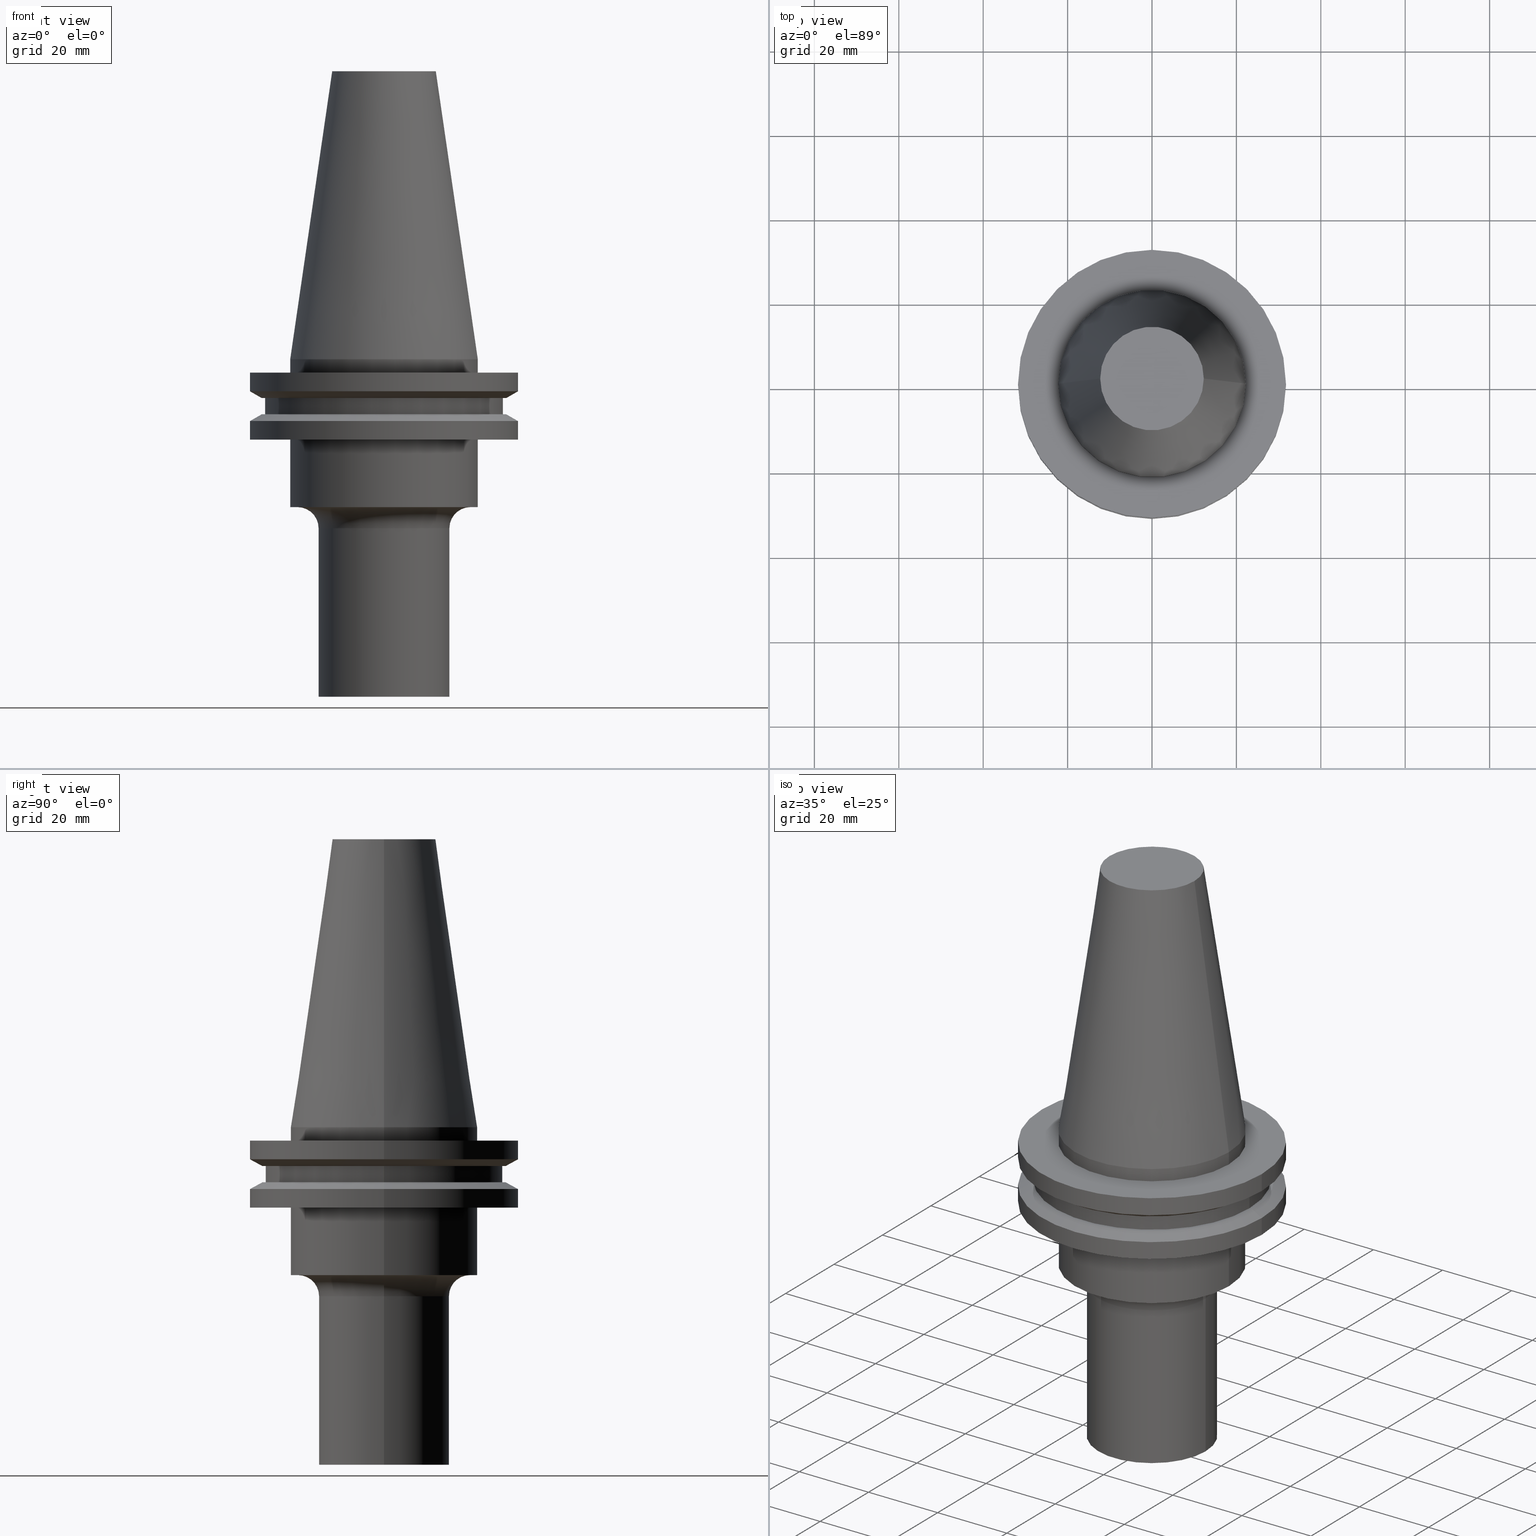
[diagram: canonical four-view strip — front | top / right | iso, engineering-drawing reading convention]
A machine part, canonical four-view strip (front | top / right | iso — engineering-drawing reading convention). The complete STEP part file that produces these views, byte-faithful:
ISO-10303-21;
HEADER;
FILE_DESCRIPTION (( 'STEP AP203' ),
    '1' );
FILE_NAME ('11_326_431.stp',
    '2022-03-07T22:03:45',
    ( '' ),
    ( '' ),
    'SwSTEP 2.0',
    'SolidWorks 2021',
    '' );
FILE_SCHEMA (( 'CONFIG_CONTROL_DESIGN' ));
ENDSEC;

DATA;
#1 = ADVANCED_FACE ( 'NONE', ( #3 ), #658, .T. ) ;
#2 = DIRECTION ( 'NONE',  ( 1.000000000000000000, 0.000000000000000000, 0.000000000000000000 ) ) ;
#3 = FACE_OUTER_BOUND ( 'NONE', #695, .T. ) ;
#4 = CIRCLE ( 'NONE', #140, 20.50000000000000000 ) ;
#5 = AXIS2_PLACEMENT_3D ( 'NONE', #494, #201, #6 ) ;
#6 = DIRECTION ( 'NONE',  ( 1.000000000000000000, 0.000000000000000000, 0.000000000000000000 ) ) ;
#7 = DIRECTION ( 'NONE',  ( 1.224646799147353207E-16, 1.000000000000000000, 0.000000000000000000 ) ) ;
#8 = CIRCLE ( 'NONE', #79, 22.22500000000000142 ) ;
#9 = DIRECTION ( 'NONE',  ( -0.000000000000000000, -0.000000000000000000, 1.000000000000000000 ) ) ;
#10 = LINE ( 'NONE', #726, #129 ) ;
#11 = DATE_AND_TIME ( #776, #640 ) ;
#12 = CARTESIAN_POINT ( 'NONE',  ( 22.22500000000000142, 0.000000000000000000, -35.04999999999999716 ) ) ;
#13 = CARTESIAN_POINT ( 'NONE',  ( 0.000000000000000000, 0.000000000000000000, -35.04999999999999716 ) ) ;
#14 = EDGE_CURVE ( 'NONE', #651, #525, #542, .T. ) ;
#15 = CARTESIAN_POINT ( 'NONE',  ( 0.000000000000000000, 0.000000000000000000, -40.04999999999999005 ) ) ;
#16 = VECTOR ( 'NONE', #442, 1000.000000000000000 ) ;
#17 = CC_DESIGN_PERSON_AND_ORGANIZATION_ASSIGNMENT ( #118, #481, ( #713 ) ) ;
#18 = CARTESIAN_POINT ( 'NONE',  ( 0.000000000000000000, 0.000000000000000000, 0.000000000000000000 ) ) ;
#19 = AXIS2_PLACEMENT_3D ( 'NONE', #511, #745, #210 ) ;
#20 = DATE_TIME_ROLE ( 'classification_date' ) ;
#21 = VECTOR ( 'NONE', #135, 1000.000000000000000 ) ;
#22 = DIRECTION ( 'NONE',  ( 0.000000000000000000, 0.000000000000000000, -1.000000000000000000 ) ) ;
#23 = EDGE_CURVE ( 'NONE', #39, #58, #598, .T. ) ;
#24 = CARTESIAN_POINT ( 'NONE',  ( 28.17999999999999972, 0.000000000000000000, 68.25000000000000000 ) ) ;
#25 = CARTESIAN_POINT ( 'NONE',  ( 22.22500000000000142, 0.000000000000000000, -19.04999999999999716 ) ) ;
#26 = EDGE_CURVE ( 'NONE', #356, #722, #239, .T. ) ;
#27 = VECTOR ( 'NONE', #87, 1000.000000000000000 ) ;
#28 = DIRECTION ( 'NONE',  ( -0.000000000000000000, -0.000000000000000000, 1.000000000000000000 ) ) ;
#29 = CARTESIAN_POINT ( 'NONE',  ( -31.75000000000000000, 0.000000000000000000, -14.65472339340266572 ) ) ;
#30 = FACE_OUTER_BOUND ( 'NONE', #230, .T. ) ;
#31 = VECTOR ( 'NONE', #150, 1000.000000000000000 ) ;
#32 = ORIENTED_EDGE ( 'NONE', *, *, #109, .F. ) ;
#33 = FACE_OUTER_BOUND ( 'NONE', #37, .T. ) ;
#34 = CARTESIAN_POINT ( 'NONE',  ( 0.000000000000000000, 0.000000000000000000, -40.04999999999999005 ) ) ;
#35 = ORIENTED_EDGE ( 'NONE', *, *, #292, .F. ) ;
#36 = CARTESIAN_POINT ( 'NONE',  ( -22.22500000000000142, 2.721777511104992849E-15, -35.04999999999999716 ) ) ;
#37 = EDGE_LOOP ( 'NONE', ( #52, #624, #656, #753 ) ) ;
#38 = DIRECTION ( 'NONE',  ( 0.000000000000000000, -0.000000000000000000, 1.000000000000000000 ) ) ;
#39 = VERTEX_POINT ( 'NONE', #715 ) ;
#40 = ORIENTED_EDGE ( 'NONE', *, *, #71, .F. ) ;
#41 = AXIS2_PLACEMENT_3D ( 'NONE', #395, #562, #22 ) ;
#42 = EDGE_CURVE ( 'NONE', #525, #638, #344, .T. ) ;
#43 = DIRECTION ( 'NONE',  ( 1.000000000000000000, 0.000000000000000000, 0.000000000000000000 ) ) ;
#44 = EDGE_LOOP ( 'NONE', ( #89, #455, #572, #402 ) ) ;
#45 = VERTEX_POINT ( 'NONE', #777 ) ;
#46 = DIRECTION ( 'NONE',  ( 1.000000000000000000, 0.000000000000000000, 0.000000000000000000 ) ) ;
#47 = ORIENTED_EDGE ( 'NONE', *, *, #251, .T. ) ;
#48 = ORIENTED_EDGE ( 'NONE', *, *, #322, .T. ) ;
#49 = EDGE_CURVE ( 'NONE', #166, #356, #543, .T. ) ;
#50 = DIRECTION ( 'NONE',  ( -0.000000000000000000, -0.000000000000000000, 1.000000000000000000 ) ) ;
#51 = VECTOR ( 'NONE', #554, 1000.000000000000000 ) ;
#52 = ORIENTED_EDGE ( 'NONE', *, *, #23, .F. ) ;
#53 = ORIENTED_EDGE ( 'NONE', *, *, #104, .F. ) ;
#54 = DIRECTION ( 'NONE',  ( -0.000000000000000000, -0.000000000000000000, 1.000000000000000000 ) ) ;
#55 =( NAMED_UNIT ( * ) SI_UNIT ( $, .STERADIAN. ) SOLID_ANGLE_UNIT ( ) );
#56 = ORIENTED_EDGE ( 'NONE', *, *, #738, .T. ) ;
#57 = AXIS2_PLACEMENT_3D ( 'NONE', #428, #65, #530 ) ;
#58 = VERTEX_POINT ( 'NONE', #483 ) ;
#59 = CARTESIAN_POINT ( 'NONE',  ( -20.50000000000000000, 2.510525938252074481E-15, -40.04999999999999716 ) ) ;
#60 = DIRECTION ( 'NONE',  ( -0.000000000000000000, -0.000000000000000000, 1.000000000000000000 ) ) ;
#61 = ADVANCED_FACE ( 'NONE', ( #717 ), #682, .F. ) ;
#62 = DIRECTION ( 'NONE',  ( -0.000000000000000000, -0.000000000000000000, 1.000000000000000000 ) ) ;
#63 = PERSON_AND_ORGANIZATION_ROLE ( 'design_supplier' ) ;
#64 = CIRCLE ( 'NONE', #269, 5.000000000000000888 ) ;
#65 = DIRECTION ( 'NONE',  ( -0.000000000000000000, -0.000000000000000000, 1.000000000000000000 ) ) ;
#66 = AXIS2_PLACEMENT_3D ( 'NONE', #225, #466, #475 ) ;
#67 = CARTESIAN_POINT ( 'NONE',  ( 22.22500000000000142, 0.000000000000000000, 68.25000000000000000 ) ) ;
#68 = DIRECTION ( 'NONE',  ( -0.000000000000000000, -0.000000000000000000, 1.000000000000000000 ) ) ;
#69 = DIRECTION ( 'NONE',  ( -1.000000000000000000, 0.000000000000000000, 0.000000000000000000 ) ) ;
#70 = CARTESIAN_POINT ( 'NONE',  ( 0.000000000000000000, 0.000000000000000000, -35.04999999999999716 ) ) ;
#71 = EDGE_CURVE ( 'NONE', #403, #410, #8, .T. ) ;
#72 = DIRECTION ( 'NONE',  ( -0.000000000000000000, -0.000000000000000000, 1.000000000000000000 ) ) ;
#73 = EDGE_CURVE ( 'NONE', #722, #346, #397, .T. ) ;
#74 = DIRECTION ( 'NONE',  ( -0.000000000000000000, -0.000000000000000000, 1.000000000000000000 ) ) ;
#75 = DIRECTION ( 'NONE',  ( 1.000000000000000000, 0.000000000000000000, 0.000000000000000000 ) ) ;
#76 = CC_DESIGN_APPROVAL ( #409, ( #333 ) ) ;
#77 = CONICAL_SURFACE ( 'NONE', #184, 28.97919780457007732, 1.047197551196598297 ) ;
#78 = DIRECTION ( 'NONE',  ( 1.000000000000000000, 0.000000000000000000, 0.000000000000000000 ) ) ;
#79 = AXIS2_PLACEMENT_3D ( 'NONE', #297, #424, #766 ) ;
#80 = CARTESIAN_POINT ( 'NONE',  ( 22.22500000000000142, 2.721777511104992849E-15, 0.000000000000000000 ) ) ;
#81 = EDGE_CURVE ( 'NONE', #119, #531, #608, .T. ) ;
#82 = SHAPE_DEFINITION_REPRESENTATION ( #345, #501 ) ;
#83 = CARTESIAN_POINT ( 'NONE',  ( 0.000000000000000000, 0.000000000000000000, 68.25000000000000000 ) ) ;
#84 = FACE_OUTER_BOUND ( 'NONE', #44, .T. ) ;
#85 = CARTESIAN_POINT ( 'NONE',  ( -22.22500000000000142, 2.721777511104992849E-15, -19.04999999999999716 ) ) ;
#86 = EDGE_LOOP ( 'NONE', ( #474, #353 ) ) ;
#87 = DIRECTION ( 'NONE',  ( -0.000000000000000000, -0.000000000000000000, 1.000000000000000000 ) ) ;
#88 = DIRECTION ( 'NONE',  ( 1.000000000000000000, 0.000000000000000000, 0.000000000000000000 ) ) ;
#89 = ORIENTED_EDGE ( 'NONE', *, *, #26, .F. ) ;
#90 = ORIENTED_EDGE ( 'NONE', *, *, #629, .F. ) ;
#91 = CARTESIAN_POINT ( 'NONE',  ( 0.000000000000000000, 31.75000000000000000, -3.174999999999993605 ) ) ;
#92 = EDGE_CURVE ( 'NONE', #478, #213, #263, .T. ) ;
#93 = ORIENTED_EDGE ( 'NONE', *, *, #312, .F. ) ;
#94 = ORIENTED_EDGE ( 'NONE', *, *, #322, .F. ) ;
#95 = DIRECTION ( 'NONE',  ( -0.000000000000000000, -0.000000000000000000, 1.000000000000000000 ) ) ;
#96 = ORIENTED_EDGE ( 'NONE', *, *, #120, .F. ) ;
#97 = AXIS2_PLACEMENT_3D ( 'NONE', #509, #743, #686 ) ;
#98 = CC_DESIGN_PERSON_AND_ORGANIZATION_ASSIGNMENT ( #546, #560, ( #444 ) ) ;
#99 = ORIENTED_EDGE ( 'NONE', *, *, #662, .T. ) ;
#100 = CARTESIAN_POINT ( 'NONE',  ( 0.000000000000000000, 0.000000000000000000, -3.174999999999997158 ) ) ;
#101 = AXIS2_PLACEMENT_3D ( 'NONE', #100, #755, #43 ) ;
#102 = AXIS2_PLACEMENT_3D ( 'NONE', #173, #95, #112 ) ;
#103 = VERTEX_POINT ( 'NONE', #665 ) ;
#104 = EDGE_CURVE ( 'NONE', #39, #289, #106, .T. ) ;
#105 = VERTEX_POINT ( 'NONE', #336 ) ;
#106 = CIRCLE ( 'NONE', #425, 28.17999999999999972 ) ;
#107 = DIRECTION ( 'NONE',  ( 1.000000000000000000, 0.000000000000000000, 0.000000000000000000 ) ) ;
#108 = DIRECTION ( 'NONE',  ( 0.000000000000000000, 0.000000000000000000, -1.000000000000000000 ) ) ;
#109 = EDGE_CURVE ( 'NONE', #478, #525, #196, .T. ) ;
#110 = ORIENTED_EDGE ( 'NONE', *, *, #504, .F. ) ;
#111 = ORIENTED_EDGE ( 'NONE', *, *, #301, .F. ) ;
#112 = DIRECTION ( 'NONE',  ( 1.000000000000000000, 0.000000000000000000, 0.000000000000000000 ) ) ;
#113 = CC_DESIGN_PERSON_AND_ORGANIZATION_ASSIGNMENT ( #242, #306, ( #333 ) ) ;
#114 = CARTESIAN_POINT ( 'NONE',  ( 0.000000000000000000, 0.000000000000000000, 68.25000000000000000 ) ) ;
#115 = APPLICATION_PROTOCOL_DEFINITION ( 'international standard', 'config_control_design', 1994, #667 ) ;
#116 = DIRECTION ( 'NONE',  ( 1.000000000000000000, 0.000000000000000000, 0.000000000000000000 ) ) ;
#117 = AXIS2_PLACEMENT_3D ( 'NONE', #699, #703, #411 ) ;
#118 = PERSON_AND_ORGANIZATION ( #476, #702 ) ;
#119 = VERTEX_POINT ( 'NONE', #628 ) ;
#120 = EDGE_CURVE ( 'NONE', #298, #520, #550, .T. ) ;
#121 = CARTESIAN_POINT ( 'NONE',  ( 0.000000000000000000, 0.000000000000000000, 0.000000000000000000 ) ) ;
#122 = APPROVAL_STATUS ( 'not_yet_approved' ) ;
#123 = DIRECTION ( 'NONE',  ( 0.8660254037844387076, 1.060575238724906915E-16, -0.4999999999999998890 ) ) ;
#124 = CARTESIAN_POINT ( 'NONE',  ( -22.22500000000000142, 2.721777511104992849E-15, -3.174999999999997158 ) ) ;
#125 = CALENDAR_DATE ( 2022, 7, 3 ) ;
#126 = CONICAL_SURFACE ( 'NONE', #245, 28.97919780457007732, 1.047197551196598297 ) ;
#127 = CARTESIAN_POINT ( 'NONE',  ( 22.22500000000000142, 0.000000000000000000, -3.174999999999997158 ) ) ;
#128 = ADVANCED_FACE ( 'NONE', ( #725 ), #435, .F. ) ;
#129 = VECTOR ( 'NONE', #74, 1000.000000000000000 ) ;
#130 = DIRECTION ( 'NONE',  ( -0.000000000000000000, -0.000000000000000000, 1.000000000000000000 ) ) ;
#131 = COORDINATED_UNIVERSAL_TIME_OFFSET ( 6, 0, .BEHIND. ) ;
#132 = DIRECTION ( 'NONE',  ( 1.000000000000000000, 0.000000000000000000, 0.000000000000000000 ) ) ;
#133 = CARTESIAN_POINT ( 'NONE',  ( -31.75000000000000000, 3.888253587292846476E-15, -7.605276606597335842 ) ) ;
#134 = COORDINATED_UNIVERSAL_TIME_OFFSET ( 6, 0, .BEHIND. ) ;
#135 = DIRECTION ( 'NONE',  ( -0.000000000000000000, -0.000000000000000000, 1.000000000000000000 ) ) ;
#136 = DIRECTION ( 'NONE',  ( 1.000000000000000000, 0.000000000000000000, 0.000000000000000000 ) ) ;
#137 = CALENDAR_DATE ( 2022, 7, 3 ) ;
#138 = ADVANCED_FACE ( 'NONE', ( #566 ), #186, .T. ) ;
#139 = VECTOR ( 'NONE', #305, 999.9999999999998863 ) ;
#140 = AXIS2_PLACEMENT_3D ( 'NONE', #287, #228, #400 ) ;
#141 = AXIS2_PLACEMENT_3D ( 'NONE', #645, #579, #575 ) ;
#142 = FACE_OUTER_BOUND ( 'NONE', #772, .T. ) ;
#143 = AXIS2_PLACEMENT_3D ( 'NONE', #258, #612, #250 ) ;
#144 = FACE_OUTER_BOUND ( 'NONE', #589, .T. ) ;
#145 = DIRECTION ( 'NONE',  ( 0.000000000000000000, 0.000000000000000000, -1.000000000000000000 ) ) ;
#146 = LINE ( 'NONE', #737, #363 ) ;
#147 = ORIENTED_EDGE ( 'NONE', *, *, #120, .T. ) ;
#148 = CYLINDRICAL_SURFACE ( 'NONE', #544, 28.17999999999999972 ) ;
#149 = DIRECTION ( 'NONE',  ( 0.000000000000000000, 0.000000000000000000, -1.000000000000000000 ) ) ;
#150 = DIRECTION ( 'NONE',  ( -0.000000000000000000, -0.000000000000000000, 1.000000000000000000 ) ) ;
#151 = VERTEX_POINT ( 'NONE', #750 ) ;
#152 = EDGE_CURVE ( 'NONE', #334, #105, #557, .T. ) ;
#153 = ORIENTED_EDGE ( 'NONE', *, *, #366, .F. ) ;
#154 = LINE ( 'NONE', #335, #309 ) ;
#155 = CARTESIAN_POINT ( 'NONE',  ( 0.000000000000000000, 0.000000000000000000, 68.25000000000000000 ) ) ;
#156 = CIRCLE ( 'NONE', #521, 28.17999999999999972 ) ;
#157 = AXIS2_PLACEMENT_3D ( 'NONE', #189, #243, #171 ) ;
#158 = ORIENTED_EDGE ( 'NONE', *, *, #470, .F. ) ;
#159 = ORIENTED_EDGE ( 'NONE', *, *, #152, .F. ) ;
#160 = FACE_BOUND ( 'NONE', #276, .T. ) ;
#161 = ORIENTED_EDGE ( 'NONE', *, *, #191, .T. ) ;
#162 = ORIENTED_EDGE ( 'NONE', *, *, #495, .F. ) ;
#163 = CIRCLE ( 'NONE', #714, 15.50000000000000000 ) ;
#164 = CYLINDRICAL_SURFACE ( 'NONE', #718, 22.22500000000000142 ) ;
#165 = EDGE_CURVE ( 'NONE', #651, #462, #674, .T. ) ;
#166 = VERTEX_POINT ( 'NONE', #192 ) ;
#167 = AXIS2_PLACEMENT_3D ( 'NONE', #683, #451, #734 ) ;
#168 = ORIENTED_EDGE ( 'NONE', *, *, #73, .T. ) ;
#169 = CARTESIAN_POINT ( 'NONE',  ( 0.000000000000000000, 0.000000000000000000, 68.25000000000000000 ) ) ;
#170 = AXIS2_PLACEMENT_3D ( 'NONE', #70, #675, #729 ) ;
#171 = DIRECTION ( 'NONE',  ( 1.000000000000000000, 0.000000000000000000, 0.000000000000000000 ) ) ;
#172 = ORIENTED_EDGE ( 'NONE', *, *, #526, .F. ) ;
#173 = CARTESIAN_POINT ( 'NONE',  ( 0.000000000000000000, 0.000000000000000000, -80.00000000000000000 ) ) ;
#174 = EDGE_LOOP ( 'NONE', ( #32, #464, #338, #522 ) ) ;
#175 = ORIENTED_EDGE ( 'NONE', *, *, #687, .F. ) ;
#176 = APPLICATION_CONTEXT ( 'configuration controlled 3d designs of mechanical parts and assemblies' ) ;
#177 = FACE_OUTER_BOUND ( 'NONE', #236, .T. ) ;
#178 = CIRCLE ( 'NONE', #611, 31.74999999999999289 ) ;
#179 = CALENDAR_DATE ( 2022, 7, 3 ) ;
#180 = DIRECTION ( 'NONE',  ( -0.000000000000000000, -0.000000000000000000, 1.000000000000000000 ) ) ;
#181 = CIRCLE ( 'NONE', #471, 28.17999999999999972 ) ;
#182 = DIRECTION ( 'NONE',  ( -0.000000000000000000, -0.000000000000000000, 1.000000000000000000 ) ) ;
#183 = EDGE_CURVE ( 'NONE', #462, #651, #650, .T. ) ;
#184 = AXIS2_PLACEMENT_3D ( 'NONE', #514, #673, #75 ) ;
#185 = AXIS2_PLACEMENT_3D ( 'NONE', #18, #436, #438 ) ;
#186 = CONICAL_SURFACE ( 'NONE', #617, 22.22500000000000142, 0.1448138465474119174 ) ;
#187 = DIRECTION ( 'NONE',  ( 1.000000000000000000, 0.000000000000000000, 0.000000000000000000 ) ) ;
#188 = APPROVAL_STATUS ( 'not_yet_approved' ) ;
#189 = CARTESIAN_POINT ( 'NONE',  ( 0.000000000000000000, 0.000000000000000000, -13.05499999999999794 ) ) ;
#190 = FACE_OUTER_BOUND ( 'NONE', #223, .T. ) ;
#191 = EDGE_CURVE ( 'NONE', #520, #298, #178, .T. ) ;
#192 = CARTESIAN_POINT ( 'NONE',  ( -28.97919780457008088, 0.000000000000000000, -13.05499999999999794 ) ) ;
#193 = EDGE_CURVE ( 'NONE', #410, #403, #279, .T. ) ;
#194 = FACE_BOUND ( 'NONE', #415, .T. ) ;
#195 = MECHANICAL_CONTEXT ( 'NONE', #667, 'mechanical' ) ;
#196 = LINE ( 'NONE', #688, #21 ) ;
#197 = CC_DESIGN_PERSON_AND_ORGANIZATION_ASSIGNMENT ( #427, #63, ( #333 ) ) ;
#198 = CYLINDRICAL_SURFACE ( 'NONE', #185, 15.50000000000000000 ) ;
#199 = APPROVAL_STATUS ( 'not_yet_approved' ) ;
#200 = FACE_OUTER_BOUND ( 'NONE', #408, .T. ) ;
#201 = DIRECTION ( 'NONE',  ( -0.000000000000000000, -0.000000000000000000, 1.000000000000000000 ) ) ;
#202 = MANIFOLD_SOLID_BREP ( 'CKB', #484 ) ;
#203 = LINE ( 'NONE', #749, #603 ) ;
#204 = LINE ( 'NONE', #271, #16 ) ;
#205 = CARTESIAN_POINT ( 'NONE',  ( 31.75000000000000000, 0.000000000000000000, -7.605276606597335842 ) ) ;
#206 = AXIS2_PLACEMENT_3D ( 'NONE', #278, #493, #379 ) ;
#207 = ORIENTED_EDGE ( 'NONE', *, *, #211, .F. ) ;
#208 = DIRECTION ( 'NONE',  ( 1.000000000000000000, 0.000000000000000000, 0.000000000000000000 ) ) ;
#209 = CARTESIAN_POINT ( 'NONE',  ( 0.000000000000000000, 0.000000000000000000, -19.04999999999999716 ) ) ;
#210 = DIRECTION ( 'NONE',  ( 1.000000000000000000, 0.000000000000000000, 0.000000000000000000 ) ) ;
#211 = EDGE_CURVE ( 'NONE', #103, #105, #163, .T. ) ;
#212 = EDGE_LOOP ( 'NONE', ( #454, #709 ) ) ;
#213 = VERTEX_POINT ( 'NONE', #127 ) ;
#214 = CARTESIAN_POINT ( 'NONE',  ( 31.75000000000000000, 0.000000000000000000, -14.65472339340266572 ) ) ;
#215 = DIRECTION ( 'NONE',  ( -0.8660254037844389297, 1.060575238724907285E-16, 0.4999999999999995004 ) ) ;
#216 = VECTOR ( 'NONE', #456, 1000.000000000000000 ) ;
#217 = VERTEX_POINT ( 'NONE', #319 ) ;
#218 = EDGE_LOOP ( 'NONE', ( #465, #576, #705, #235 ) ) ;
#219 = DIRECTION ( 'NONE',  ( 1.000000000000000000, 0.000000000000000000, 0.000000000000000000 ) ) ;
#220 = TOROIDAL_SURFACE ( 'NONE', #260, 20.50000000000000000, 4.999999999999999112 ) ;
#221 = VECTOR ( 'NONE', #215, 1000.000000000000000 ) ;
#222 = ORIENTED_EDGE ( 'NONE', *, *, #526, .T. ) ;
#223 = EDGE_LOOP ( 'NONE', ( #175, #635, #602, #207 ) ) ;
#224 = EDGE_CURVE ( 'NONE', #166, #346, #613, .T. ) ;
#225 = CARTESIAN_POINT ( 'NONE',  ( 0.000000000000000000, 31.74999999999999289, -19.04999999999999716 ) ) ;
#226 = VERTEX_POINT ( 'NONE', #12 ) ;
#227 = ORIENTED_EDGE ( 'NONE', *, *, #721, .T. ) ;
#228 = DIRECTION ( 'NONE',  ( -0.000000000000000000, -0.000000000000000000, 1.000000000000000000 ) ) ;
#229 = DIRECTION ( 'NONE',  ( -0.000000000000000000, -0.000000000000000000, 1.000000000000000000 ) ) ;
#230 = EDGE_LOOP ( 'NONE', ( #643, #337 ) ) ;
#231 = CC_DESIGN_APPROVAL ( #573, ( #713 ) ) ;
#232 = ORIENTED_EDGE ( 'NONE', *, *, #183, .F. ) ;
#233 = DIRECTION ( 'NONE',  ( -0.000000000000000000, -0.000000000000000000, 1.000000000000000000 ) ) ;
#234 = AXIS2_PLACEMENT_3D ( 'NONE', #377, #320, #2 ) ;
#235 = ORIENTED_EDGE ( 'NONE', *, *, #637, .F. ) ;
#236 = EDGE_LOOP ( 'NONE', ( #360, #161, #419, #413 ) ) ;
#237 = CARTESIAN_POINT ( 'NONE',  ( 15.50000000000000000, 0.000000000000000000, -80.00000000000000000 ) ) ;
#238 = DIRECTION ( 'NONE',  ( -1.000000000000000000, 1.224646799147352714E-16, 0.000000000000000000 ) ) ;
#239 = LINE ( 'NONE', #482, #244 ) ;
#240 = UNCERTAINTY_MEASURE_WITH_UNIT (LENGTH_MEASURE( 1.000000000000000082E-05 ), #256, 'distance_accuracy_value', 'NONE');
#241 = EDGE_CURVE ( 'NONE', #213, #478, #340, .T. ) ;
#242 = PERSON_AND_ORGANIZATION ( #476, #702 ) ;
#243 = DIRECTION ( 'NONE',  ( -0.000000000000000000, -0.000000000000000000, 1.000000000000000000 ) ) ;
#244 = VECTOR ( 'NONE', #123, 1000.000000000000000 ) ;
#245 = AXIS2_PLACEMENT_3D ( 'NONE', #252, #182, #362 ) ;
#246 = DIRECTION ( 'NONE',  ( 0.000000000000000000, 0.000000000000000000, -1.000000000000000000 ) ) ;
#247 = AXIS2_PLACEMENT_3D ( 'NONE', #585, #50, #219 ) ;
#248 = CARTESIAN_POINT ( 'NONE',  ( 0.000000000000000000, 0.000000000000000000, 0.000000000000000000 ) ) ;
#249 = CIRCLE ( 'NONE', #693, 15.50000000000000000 ) ;
#250 = DIRECTION ( 'NONE',  ( 1.000000000000000000, 0.000000000000000000, 0.000000000000000000 ) ) ;
#251 = EDGE_CURVE ( 'NONE', #105, #103, #439, .T. ) ;
#252 = CARTESIAN_POINT ( 'NONE',  ( 0.000000000000000000, 0.000000000000000000, -9.205000000000005400 ) ) ;
#253 = DIRECTION ( 'NONE',  ( 1.000000000000000000, 0.000000000000000000, 0.000000000000000000 ) ) ;
#254 = ADVANCED_FACE ( 'NONE', ( #200 ), #77, .T. ) ;
#255 = DIRECTION ( 'NONE',  ( 1.000000000000000000, 0.000000000000000000, 0.000000000000000000 ) ) ;
#256 =( LENGTH_UNIT ( ) NAMED_UNIT ( * ) SI_UNIT ( .MILLI., .METRE. ) );
#257 = CARTESIAN_POINT ( 'NONE',  ( -28.97919780457007732, 3.548928183322474856E-15, -9.205000000000005400 ) ) ;
#258 = CARTESIAN_POINT ( 'NONE',  ( 0.000000000000000000, 0.000000000000000000, -35.04999999999999716 ) ) ;
#259 = CARTESIAN_POINT ( 'NONE',  ( 0.000000000000000000, 0.000000000000000000, -3.174999999999997158 ) ) ;
#260 = AXIS2_PLACEMENT_3D ( 'NONE', #343, #506, #385 ) ;
#261 = DIRECTION ( 'NONE',  ( -0.000000000000000000, -0.000000000000000000, 1.000000000000000000 ) ) ;
#262 = DATE_AND_TIME ( #137, #432 ) ;
#263 = CIRCLE ( 'NONE', #448, 22.22500000000000142 ) ;
#264 = CARTESIAN_POINT ( 'NONE',  ( -20.50000000000000000, 2.510525938252074481E-15, -35.04999999999999716 ) ) ;
#265 = ADVANCED_FACE ( 'NONE', ( #527 ), #588, .F. ) ;
#266 = AXIS2_PLACEMENT_3D ( 'NONE', #34, #731, #88 ) ;
#267 = CARTESIAN_POINT ( 'NONE',  ( 0.000000000000000000, 0.000000000000000000, -14.65472339340266572 ) ) ;
#268 = FACE_BOUND ( 'NONE', #468, .T. ) ;
#269 = AXIS2_PLACEMENT_3D ( 'NONE', #59, #7, #238 ) ;
#270 = ORIENTED_EDGE ( 'NONE', *, *, #292, .T. ) ;
#271 = CARTESIAN_POINT ( 'NONE',  ( 28.97919780457007732, 0.000000000000000000, -9.205000000000005400 ) ) ;
#272 = CIRCLE ( 'NONE', #5, 28.97919780457007732 ) ;
#273 = CARTESIAN_POINT ( 'NONE',  ( 0.000000000000000000, 0.000000000000000000, 0.000000000000000000 ) ) ;
#274 = PLANE ( 'NONE',  #19 ) ;
#275 = ADVANCED_FACE ( 'NONE', ( #480 ), #164, .T. ) ;
#276 = EDGE_LOOP ( 'NONE', ( #458, #590 ) ) ;
#277 = DIRECTION ( 'NONE',  ( -0.000000000000000000, -0.000000000000000000, 1.000000000000000000 ) ) ;
#278 = CARTESIAN_POINT ( 'NONE',  ( 0.000000000000000000, 0.000000000000000000, -19.04999999999999716 ) ) ;
#279 = CIRCLE ( 'NONE', #599, 22.22500000000000142 ) ;
#280 = EDGE_LOOP ( 'NONE', ( #162, #758 ) ) ;
#281 = FACE_BOUND ( 'NONE', #212, .T. ) ;
#282 = EDGE_LOOP ( 'NONE', ( #630, #597, #294, #746 ) ) ;
#283 = CYLINDRICAL_SURFACE ( 'NONE', #582, 31.75000000000000000 ) ;
#284 = ORIENTED_EDGE ( 'NONE', *, *, #625, .F. ) ;
#285 = ADVANCED_FACE ( 'NONE', ( #177 ), #283, .T. ) ;
#286 = ORIENTED_EDGE ( 'NONE', *, *, #581, .T. ) ;
#287 = CARTESIAN_POINT ( 'NONE',  ( 0.000000000000000000, 0.000000000000000000, -35.04999999999999716 ) ) ;
#288 = AXIS2_PLACEMENT_3D ( 'NONE', #591, #54, #107 ) ;
#289 = VERTEX_POINT ( 'NONE', #416 ) ;
#290 = EDGE_LOOP ( 'NONE', ( #302, #94, #227, #47 ) ) ;
#291 = FACE_OUTER_BOUND ( 'NONE', #586, .T. ) ;
#292 = EDGE_CURVE ( 'NONE', #638, #525, #680, .T. ) ;
#293 = ORIENTED_EDGE ( 'NONE', *, *, #541, .F. ) ;
#294 = ORIENTED_EDGE ( 'NONE', *, *, #14, .T. ) ;
#295 = CARTESIAN_POINT ( 'NONE',  ( 0.000000000000000000, 0.000000000000000000, -9.205000000000005400 ) ) ;
#296 = FACE_OUTER_BOUND ( 'NONE', #690, .T. ) ;
#297 = CARTESIAN_POINT ( 'NONE',  ( 0.000000000000000000, 0.000000000000000000, -19.04999999999999716 ) ) ;
#298 = VERTEX_POINT ( 'NONE', #641 ) ;
#299 = FACE_OUTER_BOUND ( 'NONE', #290, .T. ) ;
#300 =( NAMED_UNIT ( * ) PLANE_ANGLE_UNIT ( ) SI_UNIT ( $, .RADIAN. ) );
#301 = EDGE_CURVE ( 'NONE', #45, #568, #323, .T. ) ;
#302 = ORIENTED_EDGE ( 'NONE', *, *, #770, .F. ) ;
#303 = CC_DESIGN_PERSON_AND_ORGANIZATION_ASSIGNMENT ( #422, #316, ( #406 ) ) ;
#304 = DATE_AND_TIME ( #179, #485 ) ;
#305 = DIRECTION ( 'NONE',  ( -0.1443082272672999711, 0.000000000000000000, -0.9895327864921755756 ) ) ;
#306 = PERSON_AND_ORGANIZATION_ROLE ( 'creator' ) ;
#307 = EDGE_LOOP ( 'NONE', ( #698, #347 ) ) ;
#308 = EDGE_CURVE ( 'NONE', #462, #638, #349, .T. ) ;
#309 = VECTOR ( 'NONE', #447, 1000.000000000000000 ) ;
#310 = DIRECTION ( 'NONE',  ( 1.000000000000000000, 0.000000000000000000, 0.000000000000000000 ) ) ;
#311 = SECURITY_CLASSIFICATION_LEVEL ( 'unclassified' ) ;
#312 = EDGE_CURVE ( 'NONE', #398, #531, #348, .T. ) ;
#313 = CARTESIAN_POINT ( 'NONE',  ( 15.50000000000000000, 0.000000000000000000, 0.000000000000000000 ) ) ;
#314 = AXIS2_PLACEMENT_3D ( 'NONE', #556, #500, #551 ) ;
#315 = CYLINDRICAL_SURFACE ( 'NONE', #757, 15.50000000000000000 ) ;
#316 = PERSON_AND_ORGANIZATION_ROLE ( 'design_owner' ) ;
#317 = DIRECTION ( 'NONE',  ( -0.000000000000000000, -0.000000000000000000, 1.000000000000000000 ) ) ;
#318 = DIRECTION ( 'NONE',  ( -0.000000000000000000, -0.000000000000000000, 1.000000000000000000 ) ) ;
#319 = CARTESIAN_POINT ( 'NONE',  ( 20.50000000000000000, 0.000000000000000000, -35.04999999999999716 ) ) ;
#320 = DIRECTION ( 'NONE',  ( 0.000000000000000000, -0.000000000000000000, 1.000000000000000000 ) ) ;
#321 = CONICAL_SURFACE ( 'NONE', #97, 22.22500000000000142, 0.1448138465474119174 ) ;
#322 = EDGE_CURVE ( 'NONE', #217, #694, #4, .T. ) ;
#323 = CIRCLE ( 'NONE', #101, 31.75000000000000000 ) ;
#324 = AXIS2_PLACEMENT_3D ( 'NONE', #91, #246, #663 ) ;
#325 = EDGE_CURVE ( 'NONE', #119, #759, #679, .T. ) ;
#326 = CARTESIAN_POINT ( 'NONE',  ( -31.74999999999999289, 3.888253587292845687E-15, -19.04999999999999716 ) ) ;
#327 = LINE ( 'NONE', #627, #27 ) ;
#328 = DIRECTION ( 'NONE',  ( 1.000000000000000000, 0.000000000000000000, 0.000000000000000000 ) ) ;
#329 = ADVANCED_FACE ( 'NONE', ( #354 ), #463, .T. ) ;
#330 = CARTESIAN_POINT ( 'NONE',  ( 0.000000000000000000, 0.000000000000000000, -80.00000000000000000 ) ) ;
#331 = DIRECTION ( 'NONE',  ( 1.000000000000000000, 0.000000000000000000, 0.000000000000000000 ) ) ;
#332 = DIRECTION ( 'NONE',  ( -0.000000000000000000, -0.000000000000000000, 1.000000000000000000 ) ) ;
#333 = PRODUCT_DEFINITION_FORMATION_WITH_SPECIFIED_SOURCE ( 'ANY', '', #406, .NOT_KNOWN. ) ;
#334 = VERTEX_POINT ( 'NONE', #237 ) ;
#335 = CARTESIAN_POINT ( 'NONE',  ( 31.75000000000000000, 0.000000000000000000, 68.25000000000000000 ) ) ;
#336 = CARTESIAN_POINT ( 'NONE',  ( 15.50000000000000000, 0.000000000000000000, -40.04999999999999005 ) ) ;
#337 = ORIENTED_EDGE ( 'NONE', *, *, #473, .F. ) ;
#338 = ORIENTED_EDGE ( 'NONE', *, *, #502, .T. ) ;
#339 = CARTESIAN_POINT ( 'NONE',  ( 22.22500000000000142, 2.721777511104992849E-15, 0.000000000000000000 ) ) ;
#340 = CIRCLE ( 'NONE', #368, 22.22500000000000142 ) ;
#341 = ORIENTED_EDGE ( 'NONE', *, *, #495, .T. ) ;
#342 = ORIENTED_EDGE ( 'NONE', *, *, #625, .T. ) ;
#343 = CARTESIAN_POINT ( 'NONE',  ( 0.000000000000000000, 0.000000000000000000, -40.04999999999999716 ) ) ;
#344 = CIRCLE ( 'NONE', #440, 22.22500000000000142 ) ;
#345 = PRODUCT_DEFINITION_SHAPE ( 'NONE', 'NONE',  #713 ) ;
#346 = VERTEX_POINT ( 'NONE', #760 ) ;
#347 = ORIENTED_EDGE ( 'NONE', *, *, #301, .T. ) ;
#348 = CIRCLE ( 'NONE', #247, 31.75000000000000000 ) ;
#349 = LINE ( 'NONE', #339, #756 ) ;
#350 = CYLINDRICAL_SURFACE ( 'NONE', #657, 28.17999999999999972 ) ;
#351 = VECTOR ( 'NONE', #318, 1000.000000000000000 ) ;
#352 = ORIENTED_EDGE ( 'NONE', *, *, #721, .F. ) ;
#353 = ORIENTED_EDGE ( 'NONE', *, *, #183, .T. ) ;
#354 = FACE_OUTER_BOUND ( 'NONE', #371, .T. ) ;
#355 = DIRECTION ( 'NONE',  ( -0.000000000000000000, -0.000000000000000000, 1.000000000000000000 ) ) ;
#356 = VERTEX_POINT ( 'NONE', #696 ) ;
#357 = ADVANCED_FACE ( 'NONE', ( #708, #160 ), #636, .F. ) ;
#358 = DIRECTION ( 'NONE',  ( -0.000000000000000000, -0.000000000000000000, 1.000000000000000000 ) ) ;
#359 = ADVANCED_FACE ( 'NONE', ( #291 ), #469, .T. ) ;
#360 = ORIENTED_EDGE ( 'NONE', *, *, #417, .F. ) ;
#361 = DESIGN_CONTEXT ( 'detailed design', #176, 'design' ) ;
#362 = DIRECTION ( 'NONE',  ( 1.000000000000000000, 0.000000000000000000, 0.000000000000000000 ) ) ;
#363 = VECTOR ( 'NONE', #332, 1000.000000000000000 ) ;
#364 = ORIENTED_EDGE ( 'NONE', *, *, #637, .T. ) ;
#365 = PERSON_AND_ORGANIZATION ( #476, #702 ) ;
#366 = EDGE_CURVE ( 'NONE', #707, #334, #681, .T. ) ;
#367 = ORIENTED_EDGE ( 'NONE', *, *, #604, .T. ) ;
#368 = AXIS2_PLACEMENT_3D ( 'NONE', #259, #498, #392 ) ;
#369 = CARTESIAN_POINT ( 'NONE',  ( 0.000000000000000000, 0.000000000000000000, 68.25000000000000000 ) ) ;
#370 = CARTESIAN_POINT ( 'NONE',  ( 0.000000000000000000, 0.000000000000000000, 0.000000000000000000 ) ) ;
#371 = EDGE_LOOP ( 'NONE', ( #420, #508, #110, #158 ) ) ;
#372 = CIRCLE ( 'NONE', #41, 4.999999999999997335 ) ;
#373 = FACE_OUTER_BOUND ( 'NONE', #534, .T. ) ;
#374 = APPROVAL_DATE_TIME ( #539, #573 ) ;
#375 = DIRECTION ( 'NONE',  ( -1.000000000000000000, 0.000000000000000000, -0.000000000000000000 ) ) ;
#376 = AXIS2_PLACEMENT_3D ( 'NONE', #83, #389, #328 ) ;
#377 = CARTESIAN_POINT ( 'NONE',  ( 0.000000000000000000, 28.97919780457007732, -9.204999999999996518 ) ) ;
#378 = DATE_TIME_ROLE ( 'creation_date' ) ;
#379 = DIRECTION ( 'NONE',  ( 1.000000000000000000, 0.000000000000000000, 0.000000000000000000 ) ) ;
#380 = CARTESIAN_POINT ( 'NONE',  ( 31.75000000000000000, 0.000000000000000000, 68.25000000000000000 ) ) ;
#381 = EDGE_CURVE ( 'NONE', #346, #722, #616, .T. ) ;
#382 = DIRECTION ( 'NONE',  ( 1.000000000000000000, 0.000000000000000000, 0.000000000000000000 ) ) ;
#383 = CARTESIAN_POINT ( 'NONE',  ( 0.000000000000000000, 0.000000000000000000, -13.05499999999999794 ) ) ;
#384 = CYLINDRICAL_SURFACE ( 'NONE', #654, 31.75000000000000000 ) ;
#385 = DIRECTION ( 'NONE',  ( 1.000000000000000000, 0.000000000000000000, 0.000000000000000000 ) ) ;
#386 = ADVANCED_FACE ( 'NONE', ( #299 ), #220, .F. ) ;
#387 = DIRECTION ( 'NONE',  ( -0.000000000000000000, -0.000000000000000000, 1.000000000000000000 ) ) ;
#388 = ADVANCED_FACE ( 'NONE', ( #620 ), #623, .T. ) ;
#389 = DIRECTION ( 'NONE',  ( -0.000000000000000000, -0.000000000000000000, 1.000000000000000000 ) ) ;
#390 = EDGE_LOOP ( 'NONE', ( #701, #53 ) ) ;
#391 = DIRECTION ( 'NONE',  ( -0.000000000000000000, -0.000000000000000000, 1.000000000000000000 ) ) ;
#392 = DIRECTION ( 'NONE',  ( 1.000000000000000000, 0.000000000000000000, 0.000000000000000000 ) ) ;
#393 = ORIENTED_EDGE ( 'NONE', *, *, #470, .T. ) ;
#394 = ORIENTED_EDGE ( 'NONE', *, *, #660, .F. ) ;
#395 = CARTESIAN_POINT ( 'NONE',  ( 20.50000000000000000, 0.000000000000000000, -40.04999999999999716 ) ) ;
#396 = CARTESIAN_POINT ( 'NONE',  ( 0.000000000000000000, 0.000000000000000000, -3.174999999999997158 ) ) ;
#397 = CIRCLE ( 'NONE', #596, 31.75000000000000000 ) ;
#398 = VERTEX_POINT ( 'NONE', #205 ) ;
#399 = ORIENTED_EDGE ( 'NONE', *, *, #211, .T. ) ;
#400 = DIRECTION ( 'NONE',  ( 1.000000000000000000, 0.000000000000000000, 0.000000000000000000 ) ) ;
#401 = AXIS2_PLACEMENT_3D ( 'NONE', #692, #510, #382 ) ;
#402 = ORIENTED_EDGE ( 'NONE', *, *, #381, .T. ) ;
#403 = VERTEX_POINT ( 'NONE', #85 ) ;
#404 = CARTESIAN_POINT ( 'NONE',  ( 0.000000000000000000, 0.000000000000000000, 68.25000000000000000 ) ) ;
#405 = CARTESIAN_POINT ( 'NONE',  ( 0.000000000000000000, 28.17999999999999972, -13.05499999999999794 ) ) ;
#406 = PRODUCT ( '11_326_431', '11_326_431', '', ( #195 ) ) ;
#407 = CONICAL_SURFACE ( 'NONE', #558, 31.75000000000000000, 1.047197551196597853 ) ;
#408 = EDGE_LOOP ( 'NONE', ( #685, #479, #592, #540 ) ) ;
#409 = APPROVAL ( #188, 'UNSPECIFIED' ) ;
#410 = VERTEX_POINT ( 'NONE', #25 ) ;
#411 = DIRECTION ( 'NONE',  ( 1.000000000000000000, 0.000000000000000000, 0.000000000000000000 ) ) ;
#412 = AXIS2_PLACEMENT_3D ( 'NONE', #724, #614, #78 ) ;
#413 = ORIENTED_EDGE ( 'NONE', *, *, #381, .F. ) ;
#414 = EDGE_CURVE ( 'NONE', #450, #403, #146, .T. ) ;
#415 = EDGE_LOOP ( 'NONE', ( #286, #56 ) ) ;
#416 = CARTESIAN_POINT ( 'NONE',  ( 28.17999999999999972, 0.000000000000000000, -13.05499999999999794 ) ) ;
#417 = EDGE_CURVE ( 'NONE', #520, #346, #567, .T. ) ;
#418 = DIRECTION ( 'NONE',  ( 1.000000000000000000, 0.000000000000000000, 0.000000000000000000 ) ) ;
#419 = ORIENTED_EDGE ( 'NONE', *, *, #629, .T. ) ;
#420 = ORIENTED_EDGE ( 'NONE', *, *, #312, .T. ) ;
#421 = LOCAL_TIME ( 16, 3, 45.00000000000000000, #131 ) ;
#422 = PERSON_AND_ORGANIZATION ( #476, #702 ) ;
#423 = CIRCLE ( 'NONE', #548, 22.22500000000000142 ) ;
#424 = DIRECTION ( 'NONE',  ( -0.000000000000000000, -0.000000000000000000, 1.000000000000000000 ) ) ;
#425 = AXIS2_PLACEMENT_3D ( 'NONE', #496, #728, #132 ) ;
#426 = CYLINDRICAL_SURFACE ( 'NONE', #460, 22.22500000000000142 ) ;
#427 = PERSON_AND_ORGANIZATION ( #476, #702 ) ;
#428 = CARTESIAN_POINT ( 'NONE',  ( 0.000000000000000000, 0.000000000000000000, -40.04999999999999716 ) ) ;
#429 = ADVANCED_FACE ( 'NONE', ( #268, #30 ), #274, .F. ) ;
#430 = DIRECTION ( 'NONE',  ( -0.000000000000000000, -0.000000000000000000, 1.000000000000000000 ) ) ;
#431 = DIRECTION ( 'NONE',  ( -0.000000000000000000, -0.000000000000000000, 1.000000000000000000 ) ) ;
#432 = LOCAL_TIME ( 16, 3, 45.00000000000000000, #134 ) ;
#433 = FACE_OUTER_BOUND ( 'NONE', #711, .T. ) ;
#434 = DIRECTION ( 'NONE',  ( 1.000000000000000000, 0.000000000000000000, 0.000000000000000000 ) ) ;
#435 = PLANE ( 'NONE',  #646 ) ;
#436 = DIRECTION ( 'NONE',  ( -0.000000000000000000, -0.000000000000000000, 1.000000000000000000 ) ) ;
#437 = CARTESIAN_POINT ( 'NONE',  ( 0.000000000000000000, 0.000000000000000000, -19.04999999999999716 ) ) ;
#438 = DIRECTION ( 'NONE',  ( 1.000000000000000000, 0.000000000000000000, 0.000000000000000000 ) ) ;
#439 = CIRCLE ( 'NONE', #266, 15.50000000000000000 ) ;
#440 = AXIS2_PLACEMENT_3D ( 'NONE', #248, #60, #116 ) ;
#441 = CC_DESIGN_APPROVAL ( #621, ( #444 ) ) ;
#442 = DIRECTION ( 'NONE',  ( 0.8660254037844389297, 0.000000000000000000, 0.4999999999999995004 ) ) ;
#443 = CALENDAR_DATE ( 2022, 7, 3 ) ;
#444 = SECURITY_CLASSIFICATION ( '', '', #311 ) ;
#445 = ADVANCED_FACE ( 'NONE', ( #453, #144 ), #765, .F. ) ;
#446 = ADVANCED_FACE ( 'NONE', ( #296 ), #350, .T. ) ;
#447 = DIRECTION ( 'NONE',  ( -0.000000000000000000, -0.000000000000000000, 1.000000000000000000 ) ) ;
#448 = AXIS2_PLACEMENT_3D ( 'NONE', #396, #633, #457 ) ;
#449 = CARTESIAN_POINT ( 'NONE',  ( -31.75000000000000000, 3.888253587292846476E-15, 68.25000000000000000 ) ) ;
#450 = VERTEX_POINT ( 'NONE', #36 ) ;
#451 = DIRECTION ( 'NONE',  ( -0.000000000000000000, -0.000000000000000000, 1.000000000000000000 ) ) ;
#452 = DIRECTION ( 'NONE',  ( 1.000000000000000000, 0.000000000000000000, 0.000000000000000000 ) ) ;
#453 = FACE_BOUND ( 'NONE', #390, .T. ) ;
#454 = ORIENTED_EDGE ( 'NONE', *, *, #241, .F. ) ;
#455 = ORIENTED_EDGE ( 'NONE', *, *, #49, .F. ) ;
#456 = DIRECTION ( 'NONE',  ( -0.000000000000000000, -0.000000000000000000, 1.000000000000000000 ) ) ;
#457 = DIRECTION ( 'NONE',  ( 1.000000000000000000, 0.000000000000000000, 0.000000000000000000 ) ) ;
#458 = ORIENTED_EDGE ( 'NONE', *, *, #193, .T. ) ;
#459 = PLANE ( 'NONE',  #324 ) ;
#460 = AXIS2_PLACEMENT_3D ( 'NONE', #369, #62, #310 ) ;
#461 = ADVANCED_FACE ( 'NONE', ( #281, #631 ), #459, .F. ) ;
#462 = VERTEX_POINT ( 'NONE', #609 ) ;
#463 = CYLINDRICAL_SURFACE ( 'NONE', #706, 31.75000000000000000 ) ;
#464 = ORIENTED_EDGE ( 'NONE', *, *, #92, .T. ) ;
#465 = ORIENTED_EDGE ( 'NONE', *, *, #489, .T. ) ;
#466 = DIRECTION ( 'NONE',  ( 0.000000000000000000, -0.000000000000000000, 1.000000000000000000 ) ) ;
#467 = EDGE_LOOP ( 'NONE', ( #172, #517, #399, #352 ) ) ;
#468 = EDGE_LOOP ( 'NONE', ( #48, #222 ) ) ;
#469 = CYLINDRICAL_SURFACE ( 'NONE', #117, 22.22500000000000142 ) ;
#470 = EDGE_CURVE ( 'NONE', #398, #568, #671, .T. ) ;
#471 = AXIS2_PLACEMENT_3D ( 'NONE', #606, #68, #434 ) ;
#472 = DIRECTION ( 'NONE',  ( -0.000000000000000000, -0.000000000000000000, 1.000000000000000000 ) ) ;
#473 = EDGE_CURVE ( 'NONE', #450, #226, #423, .T. ) ;
#474 = ORIENTED_EDGE ( 'NONE', *, *, #165, .T. ) ;
#475 = DIRECTION ( 'NONE',  ( 1.000000000000000000, 0.000000000000000000, 0.000000000000000000 ) ) ;
#476 = PERSON ( 'UNSPECIFIED', 'UNSPECIFIED', 'UNSPECIFIED', ('UNSPECIFIED'), ('UNSPECIFIED'), ('UNSPECIFIED') ) ;
#477 = CONICAL_SURFACE ( 'NONE', #314, 31.75000000000000000, 1.047197551196597853 ) ;
#478 = VERTEX_POINT ( 'NONE', #124 ) ;
#479 = ORIENTED_EDGE ( 'NONE', *, *, #325, .T. ) ;
#480 = FACE_OUTER_BOUND ( 'NONE', #174, .T. ) ;
#481 = PERSON_AND_ORGANIZATION_ROLE ( 'creator' ) ;
#482 = CARTESIAN_POINT ( 'NONE',  ( 31.75000000000000000, 3.888253587292846476E-15, -14.65472339340266572 ) ) ;
#483 = CARTESIAN_POINT ( 'NONE',  ( -28.17999999999999972, 3.451054679997241634E-15, -9.204999999999991189 ) ) ;
#484 = CLOSED_SHELL ( 'NONE', ( #61, #564, #359, #329, #761, #446, #529, #723, #388, #138, #732, #128, #429, #595, #357, #285, #684, #445, #652, #555, #254, #1, #461, #275, #265, #515, #386 ) ) ;
#485 = LOCAL_TIME ( 16, 3, 45.00000000000000000, #774 ) ;
#486 = CARTESIAN_POINT ( 'NONE',  ( 0.000000000000000000, 0.000000000000000000, -9.204999999999991189 ) ) ;
#487 = DIRECTION ( 'NONE',  ( 0.000000000000000000, 0.000000000000000000, 1.000000000000000000 ) ) ;
#488 = CIRCLE ( 'NONE', #583, 31.75000000000000000 ) ;
#489 = EDGE_CURVE ( 'NONE', #226, #450, #719, .T. ) ;
#490 = ORIENTED_EDGE ( 'NONE', *, *, #687, .T. ) ;
#491 = DIRECTION ( 'NONE',  ( -0.000000000000000000, -0.000000000000000000, 1.000000000000000000 ) ) ;
#492 = FACE_OUTER_BOUND ( 'NONE', #577, .T. ) ;
#493 = DIRECTION ( 'NONE',  ( -0.000000000000000000, -0.000000000000000000, 1.000000000000000000 ) ) ;
#494 = CARTESIAN_POINT ( 'NONE',  ( 0.000000000000000000, 0.000000000000000000, -9.205000000000005400 ) ) ;
#495 = EDGE_CURVE ( 'NONE', #759, #119, #272, .T. ) ;
#496 = CARTESIAN_POINT ( 'NONE',  ( 0.000000000000000000, 0.000000000000000000, -13.05499999999999794 ) ) ;
#497 = FACE_OUTER_BOUND ( 'NONE', #280, .T. ) ;
#498 = DIRECTION ( 'NONE',  ( -0.000000000000000000, -0.000000000000000000, 1.000000000000000000 ) ) ;
#499 = PRODUCT_RELATED_PRODUCT_CATEGORY ( 'detail', '', ( #406 ) ) ;
#500 = DIRECTION ( 'NONE',  ( 0.000000000000000000, 0.000000000000000000, -1.000000000000000000 ) ) ;
#501 = ADVANCED_BREP_SHAPE_REPRESENTATION ( '11_326_431', ( #202, #676 ), #754 ) ;
#502 = EDGE_CURVE ( 'NONE', #213, #638, #559, .T. ) ;
#503 = DIRECTION ( 'NONE',  ( 1.000000000000000000, 0.000000000000000000, 0.000000000000000000 ) ) ;
#504 = EDGE_CURVE ( 'NONE', #568, #45, #593, .T. ) ;
#505 = DIRECTION ( 'NONE',  ( -0.000000000000000000, -0.000000000000000000, 1.000000000000000000 ) ) ;
#506 = DIRECTION ( 'NONE',  ( -0.000000000000000000, -0.000000000000000000, 1.000000000000000000 ) ) ;
#507 = AXIS2_PLACEMENT_3D ( 'NONE', #383, #130, #187 ) ;
#508 = ORIENTED_EDGE ( 'NONE', *, *, #541, .T. ) ;
#509 = CARTESIAN_POINT ( 'NONE',  ( 0.000000000000000000, 0.000000000000000000, 0.000000000000000000 ) ) ;
#510 = DIRECTION ( 'NONE',  ( -0.000000000000000000, -0.000000000000000000, 1.000000000000000000 ) ) ;
#511 = CARTESIAN_POINT ( 'NONE',  ( 0.000000000000000000, 22.22500000000000142, -35.04999999999999716 ) ) ;
#512 = ORIENTED_EDGE ( 'NONE', *, *, #552, .F. ) ;
#513 = DIRECTION ( 'NONE',  ( -1.000000000000000000, 0.000000000000000000, 0.000000000000000000 ) ) ;
#514 = CARTESIAN_POINT ( 'NONE',  ( 0.000000000000000000, 0.000000000000000000, -9.205000000000005400 ) ) ;
#515 = ADVANCED_FACE ( 'NONE', ( #190 ), #315, .T. ) ;
#516 = ORIENTED_EDGE ( 'NONE', *, *, #26, .T. ) ;
#517 = ORIENTED_EDGE ( 'NONE', *, *, #770, .T. ) ;
#518 = DIRECTION ( 'NONE',  ( 1.000000000000000000, 0.000000000000000000, 0.000000000000000000 ) ) ;
#519 = APPROVAL_PERSON_ORGANIZATION ( #678, #621, #615 ) ;
#520 = VERTEX_POINT ( 'NONE', #326 ) ;
#521 = AXIS2_PLACEMENT_3D ( 'NONE', #486, #261, #733 ) ;
#522 = ORIENTED_EDGE ( 'NONE', *, *, #42, .F. ) ;
#523 = DIRECTION ( 'NONE',  ( 1.000000000000000000, 0.000000000000000000, 0.000000000000000000 ) ) ;
#524 = EDGE_LOOP ( 'NONE', ( #232, #634, #270, #632 ) ) ;
#525 = VERTEX_POINT ( 'NONE', #659 ) ;
#526 = EDGE_CURVE ( 'NONE', #694, #217, #607, .T. ) ;
#527 = FACE_OUTER_BOUND ( 'NONE', #740, .T. ) ;
#528 = CARTESIAN_POINT ( 'NONE',  ( 0.000000000000000000, 0.000000000000000000, 68.25000000000000000 ) ) ;
#529 = ADVANCED_FACE ( 'NONE', ( #373 ), #477, .T. ) ;
#530 = DIRECTION ( 'NONE',  ( 1.000000000000000000, 0.000000000000000000, 0.000000000000000000 ) ) ;
#531 = VERTEX_POINT ( 'NONE', #133 ) ;
#532 = CARTESIAN_POINT ( 'NONE',  ( 0.000000000000000000, 0.000000000000000000, 68.25000000000000000 ) ) ;
#533 = CC_DESIGN_SECURITY_CLASSIFICATION ( #444, ( #333 ) ) ;
#534 = EDGE_LOOP ( 'NONE', ( #512, #516, #168, #742 ) ) ;
#535 = ORIENTED_EDGE ( 'NONE', *, *, #251, .F. ) ;
#536 = DIRECTION ( 'NONE',  ( 1.000000000000000000, 0.000000000000000000, 0.000000000000000000 ) ) ;
#537 = APPROVAL_ROLE ( '' ) ;
#538 = CARTESIAN_POINT ( 'NONE',  ( -22.22500000000000142, 0.000000000000000000, 0.000000000000000000 ) ) ;
#539 = DATE_AND_TIME ( #125, #421 ) ;
#540 = ORIENTED_EDGE ( 'NONE', *, *, #604, .F. ) ;
#541 = EDGE_CURVE ( 'NONE', #531, #45, #10, .T. ) ;
#542 = LINE ( 'NONE', #538, #139 ) ;
#543 = CIRCLE ( 'NONE', #157, 28.97919780457008088 ) ;
#544 = AXIS2_PLACEMENT_3D ( 'NONE', #563, #277, #503 ) ;
#545 = CARTESIAN_POINT ( 'NONE',  ( 0.000000000000000000, 0.000000000000000000, -7.605276606597335842 ) ) ;
#546 = PERSON_AND_ORGANIZATION ( #476, #702 ) ;
#547 = AXIS2_PLACEMENT_3D ( 'NONE', #764, #38, #536 ) ;
#548 = AXIS2_PLACEMENT_3D ( 'NONE', #13, #605, #255 ) ;
#549 = DIRECTION ( 'NONE',  ( 1.000000000000000000, 0.000000000000000000, 0.000000000000000000 ) ) ;
#550 = CIRCLE ( 'NONE', #206, 31.74999999999999289 ) ;
#551 = DIRECTION ( 'NONE',  ( -1.000000000000000000, 0.000000000000000000, 0.000000000000000000 ) ) ;
#552 = EDGE_CURVE ( 'NONE', #356, #166, #569, .T. ) ;
#553 = COORDINATED_UNIVERSAL_TIME_OFFSET ( 6, 0, .BEHIND. ) ;
#554 = DIRECTION ( 'NONE',  ( -0.8660254037844387076, 0.000000000000000000, -0.4999999999999998890 ) ) ;
#555 = ADVANCED_FACE ( 'NONE', ( #497, #194 ), #600, .F. ) ;
#556 = CARTESIAN_POINT ( 'NONE',  ( 0.000000000000000000, 0.000000000000000000, -14.65472339340266572 ) ) ;
#557 = LINE ( 'NONE', #313, #741 ) ;
#558 = AXIS2_PLACEMENT_3D ( 'NONE', #267, #145, #513 ) ;
#559 = LINE ( 'NONE', #67, #351 ) ;
#560 = PERSON_AND_ORGANIZATION_ROLE ( 'classification_officer' ) ;
#561 = AXIS2_PLACEMENT_3D ( 'NONE', #405, #108, #642 ) ;
#562 = DIRECTION ( 'NONE',  ( 0.000000000000000000, -1.000000000000000000, 0.000000000000000000 ) ) ;
#563 = CARTESIAN_POINT ( 'NONE',  ( 0.000000000000000000, 0.000000000000000000, 68.25000000000000000 ) ) ;
#564 = ADVANCED_FACE ( 'NONE', ( #433 ), #198, .T. ) ;
#565 = DIRECTION ( 'NONE',  ( 1.000000000000000000, 0.000000000000000000, 0.000000000000000000 ) ) ;
#566 = FACE_OUTER_BOUND ( 'NONE', #524, .T. ) ;
#567 = LINE ( 'NONE', #449, #31 ) ;
#568 = VERTEX_POINT ( 'NONE', #668 ) ;
#569 = CIRCLE ( 'NONE', #507, 28.97919780457008088 ) ;
#570 = CARTESIAN_POINT ( 'NONE',  ( -12.27178102086201150, 0.000000000000000000, 68.25000000000000000 ) ) ;
#571 = DIRECTION ( 'NONE',  ( -0.000000000000000000, -0.000000000000000000, 1.000000000000000000 ) ) ;
#572 = ORIENTED_EDGE ( 'NONE', *, *, #224, .T. ) ;
#573 = APPROVAL ( #122, 'UNSPECIFIED' ) ;
#574 = ORIENTED_EDGE ( 'NONE', *, *, #552, .T. ) ;
#575 = DIRECTION ( 'NONE',  ( 1.000000000000000000, 0.000000000000000000, 0.000000000000000000 ) ) ;
#576 = ORIENTED_EDGE ( 'NONE', *, *, #414, .T. ) ;
#577 = EDGE_LOOP ( 'NONE', ( #341, #700, #93, #584 ) ) ;
#578 = VECTOR ( 'NONE', #180, 1000.000000000000000 ) ;
#579 = DIRECTION ( 'NONE',  ( -0.000000000000000000, -0.000000000000000000, 1.000000000000000000 ) ) ;
#580 = ORIENTED_EDGE ( 'NONE', *, *, #502, .F. ) ;
#581 = EDGE_CURVE ( 'NONE', #151, #58, #156, .T. ) ;
#582 = AXIS2_PLACEMENT_3D ( 'NONE', #404, #358, #518 ) ;
#583 = AXIS2_PLACEMENT_3D ( 'NONE', #545, #28, #565 ) ;
#584 = ORIENTED_EDGE ( 'NONE', *, *, #710, .F. ) ;
#585 = CARTESIAN_POINT ( 'NONE',  ( 0.000000000000000000, 0.000000000000000000, -7.605276606597335842 ) ) ;
#586 = EDGE_LOOP ( 'NONE', ( #751, #771, #35, #580 ) ) ;
#587 = ORIENTED_EDGE ( 'NONE', *, *, #23, .T. ) ;
#588 = PLANE ( 'NONE',  #547 ) ;
#589 = EDGE_LOOP ( 'NONE', ( #697, #574 ) ) ;
#590 = ORIENTED_EDGE ( 'NONE', *, *, #71, .T. ) ;
#591 = CARTESIAN_POINT ( 'NONE',  ( 0.000000000000000000, 0.000000000000000000, -14.65472339340266572 ) ) ;
#592 = ORIENTED_EDGE ( 'NONE', *, *, #710, .T. ) ;
#593 = CIRCLE ( 'NONE', #412, 31.75000000000000000 ) ;
#594 = DIRECTION ( 'NONE',  ( 1.000000000000000000, 0.000000000000000000, 0.000000000000000000 ) ) ;
#595 = ADVANCED_FACE ( 'NONE', ( #720 ), #426, .T. ) ;
#596 = AXIS2_PLACEMENT_3D ( 'NONE', #647, #355, #331 ) ;
#597 = ORIENTED_EDGE ( 'NONE', *, *, #165, .F. ) ;
#598 = LINE ( 'NONE', #775, #578 ) ;
#599 = AXIS2_PLACEMENT_3D ( 'NONE', #437, #317, #452 ) ;
#600 = PLANE ( 'NONE',  #234 ) ;
#601 = APPROVAL_ROLE ( '' ) ;
#602 = ORIENTED_EDGE ( 'NONE', *, *, #152, .T. ) ;
#603 = VECTOR ( 'NONE', #505, 1000.000000000000000 ) ;
#604 = EDGE_CURVE ( 'NONE', #531, #398, #488, .T. ) ;
#605 = DIRECTION ( 'NONE',  ( -0.000000000000000000, -0.000000000000000000, 1.000000000000000000 ) ) ;
#606 = CARTESIAN_POINT ( 'NONE',  ( 0.000000000000000000, 0.000000000000000000, -9.204999999999991189 ) ) ;
#607 = CIRCLE ( 'NONE', #143, 20.50000000000000000 ) ;
#608 = LINE ( 'NONE', #257, #221 ) ;
#609 = CARTESIAN_POINT ( 'NONE',  ( 12.27178102086201150, 2.112318622904291439E-15, 68.25000000000000000 ) ) ;
#610 = CARTESIAN_POINT ( 'NONE',  ( 0.000000000000000000, 12.27178102086201150, 68.25000000000000000 ) ) ;
#611 = AXIS2_PLACEMENT_3D ( 'NONE', #209, #431, #670 ) ;
#612 = DIRECTION ( 'NONE',  ( -0.000000000000000000, -0.000000000000000000, 1.000000000000000000 ) ) ;
#613 = LINE ( 'NONE', #29, #51 ) ;
#614 = DIRECTION ( 'NONE',  ( -0.000000000000000000, -0.000000000000000000, 1.000000000000000000 ) ) ;
#615 = APPROVAL_ROLE ( '' ) ;
#616 = CIRCLE ( 'NONE', #288, 31.75000000000000000 ) ;
#617 = AXIS2_PLACEMENT_3D ( 'NONE', #273, #149, #69 ) ;
#618 = CARTESIAN_POINT ( 'NONE',  ( 0.000000000000000000, 0.000000000000000000, 68.25000000000000000 ) ) ;
#619 = DATE_AND_TIME ( #443, #768 ) ;
#620 = FACE_OUTER_BOUND ( 'NONE', #218, .T. ) ;
#621 = APPROVAL ( #199, 'UNSPECIFIED' ) ;
#622 = FACE_OUTER_BOUND ( 'NONE', #282, .T. ) ;
#623 = CYLINDRICAL_SURFACE ( 'NONE', #376, 22.22500000000000142 ) ;
#624 = ORIENTED_EDGE ( 'NONE', *, *, #104, .T. ) ;
#625 = EDGE_CURVE ( 'NONE', #334, #707, #249, .T. ) ;
#626 = APPROVAL_PERSON_ORGANIZATION ( #365, #409, #601 ) ;
#627 = CARTESIAN_POINT ( 'NONE',  ( 22.22500000000000142, 0.000000000000000000, 68.25000000000000000 ) ) ;
#628 = CARTESIAN_POINT ( 'NONE',  ( -28.97919780457007732, 3.718590885307660666E-15, -9.205000000000005400 ) ) ;
#629 = EDGE_CURVE ( 'NONE', #298, #722, #154, .T. ) ;
#630 = ORIENTED_EDGE ( 'NONE', *, *, #308, .F. ) ;
#631 = FACE_OUTER_BOUND ( 'NONE', #307, .T. ) ;
#632 = ORIENTED_EDGE ( 'NONE', *, *, #14, .F. ) ;
#633 = DIRECTION ( 'NONE',  ( -0.000000000000000000, -0.000000000000000000, 1.000000000000000000 ) ) ;
#634 = ORIENTED_EDGE ( 'NONE', *, *, #308, .T. ) ;
#635 = ORIENTED_EDGE ( 'NONE', *, *, #366, .T. ) ;
#636 = PLANE ( 'NONE',  #66 ) ;
#637 = EDGE_CURVE ( 'NONE', #226, #410, #327, .T. ) ;
#638 = VERTEX_POINT ( 'NONE', #80 ) ;
#639 = EDGE_LOOP ( 'NONE', ( #762, #661, #364, #40 ) ) ;
#640 = LOCAL_TIME ( 16, 3, 45.00000000000000000, #553 ) ;
#641 = CARTESIAN_POINT ( 'NONE',  ( 31.74999999999999289, 0.000000000000000000, -19.04999999999999716 ) ) ;
#642 = DIRECTION ( 'NONE',  ( -1.000000000000000000, 0.000000000000000000, -0.000000000000000000 ) ) ;
#643 = ORIENTED_EDGE ( 'NONE', *, *, #489, .F. ) ;
#644 = ORIENTED_EDGE ( 'NONE', *, *, #581, .F. ) ;
#645 = CARTESIAN_POINT ( 'NONE',  ( 0.000000000000000000, 0.000000000000000000, 0.000000000000000000 ) ) ;
#646 = AXIS2_PLACEMENT_3D ( 'NONE', #610, #744, #375 ) ;
#647 = CARTESIAN_POINT ( 'NONE',  ( 0.000000000000000000, 0.000000000000000000, -14.65472339340266572 ) ) ;
#648 = EDGE_LOOP ( 'NONE', ( #96, #763 ) ) ;
#649 = DIRECTION ( 'NONE',  ( 0.1443082272672999711, 1.767266086135276757E-17, -0.9895327864921755756 ) ) ;
#650 = CIRCLE ( 'NONE', #748, 12.27178102086201150 ) ;
#651 = VERTEX_POINT ( 'NONE', #570 ) ;
#652 = ADVANCED_FACE ( 'NONE', ( #33 ), #148, .T. ) ;
#653 = APPROVAL_DATE_TIME ( #304, #409 ) ;
#654 = AXIS2_PLACEMENT_3D ( 'NONE', #618, #387, #208 ) ;
#655 = CC_DESIGN_DATE_AND_TIME_ASSIGNMENT ( #11, #378, ( #713 ) ) ;
#656 = ORIENTED_EDGE ( 'NONE', *, *, #660, .T. ) ;
#657 = AXIS2_PLACEMENT_3D ( 'NONE', #528, #229, #704 ) ;
#658 = CYLINDRICAL_SURFACE ( 'NONE', #752, 31.75000000000000000 ) ;
#659 = CARTESIAN_POINT ( 'NONE',  ( -22.22500000000000142, 0.000000000000000000, 0.000000000000000000 ) ) ;
#660 = EDGE_CURVE ( 'NONE', #289, #151, #677, .T. ) ;
#661 = ORIENTED_EDGE ( 'NONE', *, *, #473, .T. ) ;
#662 = EDGE_CURVE ( 'NONE', #289, #39, #735, .T. ) ;
#663 = DIRECTION ( 'NONE',  ( -1.000000000000000000, 0.000000000000000000, -0.000000000000000000 ) ) ;
#664 = PERSON_AND_ORGANIZATION ( #476, #702 ) ;
#665 = CARTESIAN_POINT ( 'NONE',  ( -15.50000000000000000, 1.898202538678397557E-15, -40.04999999999999005 ) ) ;
#666 = APPROVAL_PERSON_ORGANIZATION ( #664, #573, #537 ) ;
#667 = APPLICATION_CONTEXT ( 'configuration controlled 3d designs of mechanical parts and assemblies' ) ;
#668 = CARTESIAN_POINT ( 'NONE',  ( 31.75000000000000000, 0.000000000000000000, -3.174999999999997158 ) ) ;
#669 = APPLICATION_PROTOCOL_DEFINITION ( 'international standard', 'config_control_design', 1994, #176 ) ;
#670 = DIRECTION ( 'NONE',  ( 1.000000000000000000, 0.000000000000000000, 0.000000000000000000 ) ) ;
#671 = LINE ( 'NONE', #380, #739 ) ;
#672 = APPROVAL_DATE_TIME ( #262, #621 ) ;
#673 = DIRECTION ( 'NONE',  ( -0.000000000000000000, -0.000000000000000000, 1.000000000000000000 ) ) ;
#674 = CIRCLE ( 'NONE', #401, 12.27178102086201150 ) ;
#675 = DIRECTION ( 'NONE',  ( -0.000000000000000000, -0.000000000000000000, 1.000000000000000000 ) ) ;
#676 = AXIS2_PLACEMENT_3D ( 'NONE', #370, #487, #594 ) ;
#677 = LINE ( 'NONE', #24, #216 ) ;
#678 = PERSON_AND_ORGANIZATION ( #476, #702 ) ;
#679 = CIRCLE ( 'NONE', #716, 28.97919780457007732 ) ;
#680 = CIRCLE ( 'NONE', #141, 22.22500000000000142 ) ;
#681 = CIRCLE ( 'NONE', #102, 15.50000000000000000 ) ;
#682 = TOROIDAL_SURFACE ( 'NONE', #57, 20.50000000000000000, 4.999999999999999112 ) ;
#683 = CARTESIAN_POINT ( 'NONE',  ( 0.000000000000000000, 0.000000000000000000, -13.05499999999999794 ) ) ;
#684 = ADVANCED_FACE ( 'NONE', ( #84 ), #407, .T. ) ;
#685 = ORIENTED_EDGE ( 'NONE', *, *, #81, .F. ) ;
#686 = DIRECTION ( 'NONE',  ( -1.000000000000000000, 0.000000000000000000, 0.000000000000000000 ) ) ;
#687 = EDGE_CURVE ( 'NONE', #707, #103, #203, .T. ) ;
#688 = CARTESIAN_POINT ( 'NONE',  ( -22.22500000000000142, 2.721777511104992849E-15, 68.25000000000000000 ) ) ;
#689 = ORIENTED_EDGE ( 'NONE', *, *, #73, .F. ) ;
#690 = EDGE_LOOP ( 'NONE', ( #99, #587, #644, #394 ) ) ;
#691 = DIRECTION ( 'NONE',  ( 1.000000000000000000, 0.000000000000000000, 0.000000000000000000 ) ) ;
#692 = CARTESIAN_POINT ( 'NONE',  ( 0.000000000000000000, 0.000000000000000000, 68.25000000000000000 ) ) ;
#693 = AXIS2_PLACEMENT_3D ( 'NONE', #330, #391, #691 ) ;
#694 = VERTEX_POINT ( 'NONE', #264 ) ;
#695 = EDGE_LOOP ( 'NONE', ( #293, #367, #393, #111 ) ) ;
#696 = CARTESIAN_POINT ( 'NONE',  ( 28.97919780457008088, 3.718590885307660666E-15, -13.05499999999999794 ) ) ;
#697 = ORIENTED_EDGE ( 'NONE', *, *, #49, .T. ) ;
#698 = ORIENTED_EDGE ( 'NONE', *, *, #504, .T. ) ;
#699 = CARTESIAN_POINT ( 'NONE',  ( 0.000000000000000000, 0.000000000000000000, 68.25000000000000000 ) ) ;
#700 = ORIENTED_EDGE ( 'NONE', *, *, #81, .T. ) ;
#701 = ORIENTED_EDGE ( 'NONE', *, *, #662, .F. ) ;
#702 = ORGANIZATION ( 'UNSPECIFIED', 'UNSPECIFIED', '' ) ;
#703 = DIRECTION ( 'NONE',  ( -0.000000000000000000, -0.000000000000000000, 1.000000000000000000 ) ) ;
#704 = DIRECTION ( 'NONE',  ( 1.000000000000000000, 0.000000000000000000, 0.000000000000000000 ) ) ;
#705 = ORIENTED_EDGE ( 'NONE', *, *, #193, .F. ) ;
#706 = AXIS2_PLACEMENT_3D ( 'NONE', #532, #233, #523 ) ;
#707 = VERTEX_POINT ( 'NONE', #736 ) ;
#708 = FACE_OUTER_BOUND ( 'NONE', #648, .T. ) ;
#709 = ORIENTED_EDGE ( 'NONE', *, *, #92, .F. ) ;
#710 = EDGE_CURVE ( 'NONE', #759, #398, #204, .T. ) ;
#711 = EDGE_LOOP ( 'NONE', ( #342, #490, #535, #159 ) ) ;
#712 = DIRECTION ( 'NONE',  ( 1.000000000000000000, 0.000000000000000000, 0.000000000000000000 ) ) ;
#713 = PRODUCT_DEFINITION ( 'UNKNOWN', '', #333, #361 ) ;
#714 = AXIS2_PLACEMENT_3D ( 'NONE', #15, #9, #253 ) ;
#715 = CARTESIAN_POINT ( 'NONE',  ( -28.17999999999999972, 3.451054679997241634E-15, -13.05499999999999794 ) ) ;
#716 = AXIS2_PLACEMENT_3D ( 'NONE', #295, #773, #46 ) ;
#717 = FACE_OUTER_BOUND ( 'NONE', #467, .T. ) ;
#718 = AXIS2_PLACEMENT_3D ( 'NONE', #169, #769, #712 ) ;
#719 = CIRCLE ( 'NONE', #170, 22.22500000000000142 ) ;
#720 = FACE_OUTER_BOUND ( 'NONE', #639, .T. ) ;
#721 = EDGE_CURVE ( 'NONE', #217, #105, #372, .T. ) ;
#722 = VERTEX_POINT ( 'NONE', #214 ) ;
#723 = ADVANCED_FACE ( 'NONE', ( #142 ), #384, .T. ) ;
#724 = CARTESIAN_POINT ( 'NONE',  ( 0.000000000000000000, 0.000000000000000000, -3.174999999999997158 ) ) ;
#725 = FACE_OUTER_BOUND ( 'NONE', #86, .T. ) ;
#726 = CARTESIAN_POINT ( 'NONE',  ( -31.75000000000000000, 3.888253587292846476E-15, 68.25000000000000000 ) ) ;
#727 = CARTESIAN_POINT ( 'NONE',  ( 28.97919780457007732, 0.000000000000000000, -9.205000000000005400 ) ) ;
#728 = DIRECTION ( 'NONE',  ( -0.000000000000000000, -0.000000000000000000, 1.000000000000000000 ) ) ;
#729 = DIRECTION ( 'NONE',  ( 1.000000000000000000, 0.000000000000000000, 0.000000000000000000 ) ) ;
#730 = COORDINATED_UNIVERSAL_TIME_OFFSET ( 6, 0, .BEHIND. ) ;
#731 = DIRECTION ( 'NONE',  ( -0.000000000000000000, -0.000000000000000000, 1.000000000000000000 ) ) ;
#732 = ADVANCED_FACE ( 'NONE', ( #622 ), #321, .T. ) ;
#733 = DIRECTION ( 'NONE',  ( 1.000000000000000000, 0.000000000000000000, 0.000000000000000000 ) ) ;
#734 = DIRECTION ( 'NONE',  ( 1.000000000000000000, 0.000000000000000000, 0.000000000000000000 ) ) ;
#735 = CIRCLE ( 'NONE', #167, 28.17999999999999972 ) ;
#736 = CARTESIAN_POINT ( 'NONE',  ( -15.50000000000000000, 1.898202538678397557E-15, -80.00000000000000000 ) ) ;
#737 = CARTESIAN_POINT ( 'NONE',  ( -22.22500000000000142, 2.721777511104992849E-15, 68.25000000000000000 ) ) ;
#738 = EDGE_CURVE ( 'NONE', #58, #151, #181, .T. ) ;
#739 = VECTOR ( 'NONE', #491, 1000.000000000000000 ) ;
#740 = EDGE_LOOP ( 'NONE', ( #284, #153 ) ) ;
#741 = VECTOR ( 'NONE', #571, 1000.000000000000000 ) ;
#742 = ORIENTED_EDGE ( 'NONE', *, *, #224, .F. ) ;
#743 = DIRECTION ( 'NONE',  ( 0.000000000000000000, 0.000000000000000000, -1.000000000000000000 ) ) ;
#744 = DIRECTION ( 'NONE',  ( 0.000000000000000000, 0.000000000000000000, -1.000000000000000000 ) ) ;
#745 = DIRECTION ( 'NONE',  ( 0.000000000000000000, -0.000000000000000000, 1.000000000000000000 ) ) ;
#746 = ORIENTED_EDGE ( 'NONE', *, *, #42, .T. ) ;
#747 = CC_DESIGN_DATE_AND_TIME_ASSIGNMENT ( #619, #20, ( #444 ) ) ;
#748 = AXIS2_PLACEMENT_3D ( 'NONE', #155, #72, #549 ) ;
#749 = CARTESIAN_POINT ( 'NONE',  ( -15.50000000000000000, 1.898202538678397557E-15, 0.000000000000000000 ) ) ;
#750 = CARTESIAN_POINT ( 'NONE',  ( 28.17999999999999972, 0.000000000000000000, -9.204999999999991189 ) ) ;
#751 = ORIENTED_EDGE ( 'NONE', *, *, #241, .T. ) ;
#752 = AXIS2_PLACEMENT_3D ( 'NONE', #114, #472, #418 ) ;
#753 = ORIENTED_EDGE ( 'NONE', *, *, #738, .F. ) ;
#754 =( GEOMETRIC_REPRESENTATION_CONTEXT ( 3 ) GLOBAL_UNCERTAINTY_ASSIGNED_CONTEXT ( ( #240 ) ) GLOBAL_UNIT_ASSIGNED_CONTEXT ( ( #256, #300, #55 ) ) REPRESENTATION_CONTEXT ( 'NONE', 'WORKASPACE' ) );
#755 = DIRECTION ( 'NONE',  ( -0.000000000000000000, -0.000000000000000000, 1.000000000000000000 ) ) ;
#756 = VECTOR ( 'NONE', #649, 999.9999999999998863 ) ;
#757 = AXIS2_PLACEMENT_3D ( 'NONE', #121, #430, #136 ) ;
#758 = ORIENTED_EDGE ( 'NONE', *, *, #325, .F. ) ;
#759 = VERTEX_POINT ( 'NONE', #727 ) ;
#760 = CARTESIAN_POINT ( 'NONE',  ( -31.75000000000000000, 3.888253587292846476E-15, -14.65472339340266572 ) ) ;
#761 = ADVANCED_FACE ( 'NONE', ( #492 ), #126, .T. ) ;
#762 = ORIENTED_EDGE ( 'NONE', *, *, #414, .F. ) ;
#763 = ORIENTED_EDGE ( 'NONE', *, *, #191, .F. ) ;
#764 = CARTESIAN_POINT ( 'NONE',  ( 0.000000000000000000, 15.50000000000000000, -80.00000000000000000 ) ) ;
#765 = PLANE ( 'NONE',  #561 ) ;
#766 = DIRECTION ( 'NONE',  ( 1.000000000000000000, 0.000000000000000000, 0.000000000000000000 ) ) ;
#767 = ORIENTED_EDGE ( 'NONE', *, *, #417, .T. ) ;
#768 = LOCAL_TIME ( 16, 3, 45.00000000000000000, #730 ) ;
#769 = DIRECTION ( 'NONE',  ( -0.000000000000000000, -0.000000000000000000, 1.000000000000000000 ) ) ;
#770 = EDGE_CURVE ( 'NONE', #694, #103, #64, .T. ) ;
#771 = ORIENTED_EDGE ( 'NONE', *, *, #109, .T. ) ;
#772 = EDGE_LOOP ( 'NONE', ( #147, #767, #689, #90 ) ) ;
#773 = DIRECTION ( 'NONE',  ( -0.000000000000000000, -0.000000000000000000, 1.000000000000000000 ) ) ;
#774 = COORDINATED_UNIVERSAL_TIME_OFFSET ( 6, 0, .BEHIND. ) ;
#775 = CARTESIAN_POINT ( 'NONE',  ( -28.17999999999999972, 3.451054679997241634E-15, 68.25000000000000000 ) ) ;
#776 = CALENDAR_DATE ( 2022, 7, 3 ) ;
#777 = CARTESIAN_POINT ( 'NONE',  ( -31.75000000000000000, 3.888253587292846476E-15, -3.174999999999997158 ) ) ;
ENDSEC;
END-ISO-10303-21;
